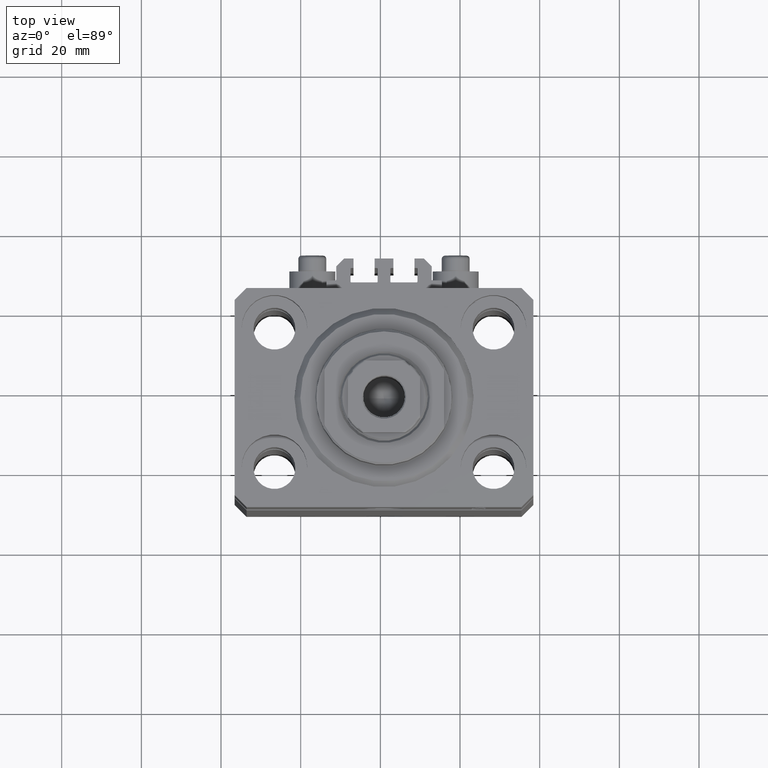
[diagram: clean part render]
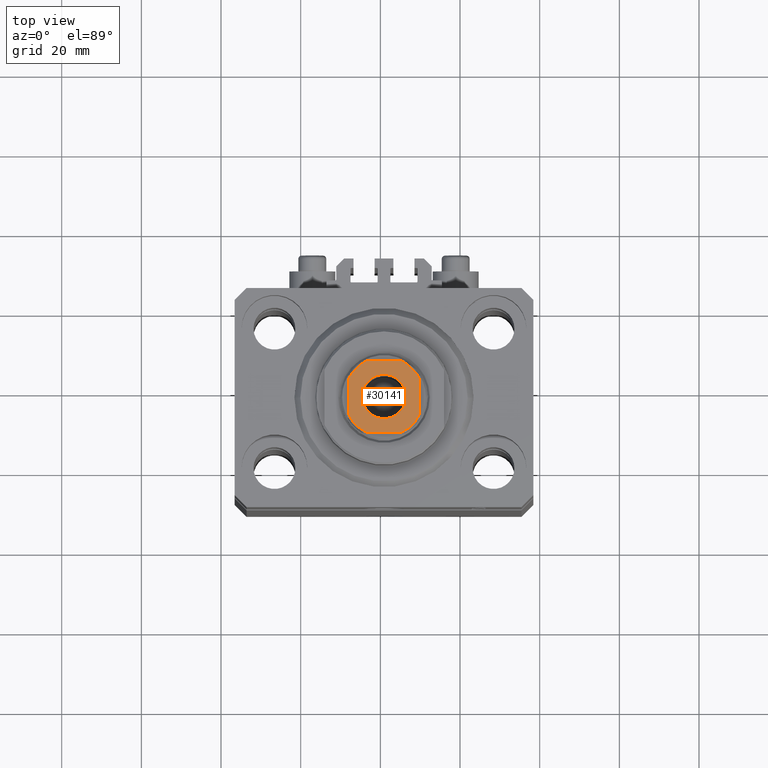
[diagram: same view with one face highlighted and labeled with its STEP entity id]
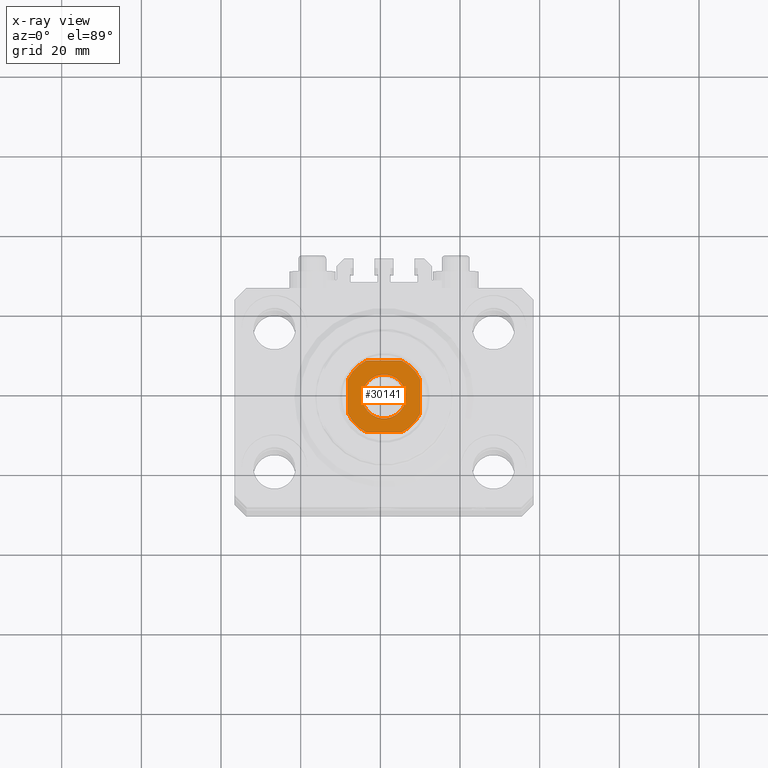
[diagram: x-ray of the same camera — body ghosted, the highlighted face saturated]
A machine part, top view. The second image highlights one B-rep face of the part: STEP entity #30141.
The next image is the same camera in x-ray: the body ghosted, the highlighted face saturated — about 0% of this face is hidden behind the body in this view.
In plain terms, the highlighted planar face has unit normal (0, 0, 1).
Its self-contained STEP definition (entity closure, byte-faithful):
#578 = AXIS2_PLACEMENT_3D ( 'NONE', #21206, #28077, #24529 ) ;
#943 = PLANE ( 'NONE',  #27938 ) ;
#1278 = CARTESIAN_POINT ( 'NONE',  ( -4.358898943540678417, 8.999999999999998224, 145.0000000000000284 ) ) ;
#1408 = CARTESIAN_POINT ( 'NONE',  ( 9.000000000000000000, 8.999999999999998224, 145.0000000000000284 ) ) ;
#2136 = ORIENTED_EDGE ( 'NONE', *, *, #17932, .T. ) ;
#2416 = DIRECTION ( 'NONE',  ( -0.000000000000000000, 0.000000000000000000, 1.000000000000000000 ) ) ;
#2790 = VERTEX_POINT ( 'NONE', #25884 ) ;
#4512 = EDGE_CURVE ( 'NONE', #2790, #6571, #46490, .T. ) ;
#4651 = DIRECTION ( 'NONE',  ( 1.000000000000000000, 0.000000000000000000, 0.000000000000000000 ) ) ;
#5485 = AXIS2_PLACEMENT_3D ( 'NONE', #31839, #38481, #12920 ) ;
#5699 = EDGE_LOOP ( 'NONE', ( #22769, #37264, #26899, #2136, #13645, #18002, #36061, #12135 ) ) ;
#6571 = VERTEX_POINT ( 'NONE', #40898 ) ;
#7533 = CIRCLE ( 'NONE', #29370, 5.549999999999998934 ) ;
#7802 = FACE_BOUND ( 'NONE', #13277, .T. ) ;
#8342 = EDGE_CURVE ( 'NONE', #29936, #18470, #46688, .T. ) ;
#8430 = DIRECTION ( 'NONE',  ( -0.000000000000000000, 0.000000000000000000, 1.000000000000000000 ) ) ;
#10130 = EDGE_CURVE ( 'NONE', #32015, #26345, #45941, .T. ) ;
#10482 = LINE ( 'NONE', #39373, #29777 ) ;
#10552 = CARTESIAN_POINT ( 'NONE',  ( -4.358898943540671311, -9.000000000000001776, 145.0000000000000284 ) ) ;
#10695 = DIRECTION ( 'NONE',  ( 9.637352644315595243E-17, -1.000000000000000000, 0.000000000000000000 ) ) ;
#12065 = DIRECTION ( 'NONE',  ( -0.000000000000000000, 0.000000000000000000, 1.000000000000000000 ) ) ;
#12135 = ORIENTED_EDGE ( 'NONE', *, *, #27523, .T. ) ;
#12379 = DIRECTION ( 'NONE',  ( 1.000000000000000000, 0.000000000000000000, 0.000000000000000000 ) ) ;
#12605 = CARTESIAN_POINT ( 'NONE',  ( 0.000000000000000000, 0.000000000000000000, 145.0000000000000284 ) ) ;
#12920 = DIRECTION ( 'NONE',  ( 1.000000000000000000, 0.000000000000000000, 0.000000000000000000 ) ) ;
#12970 = VERTEX_POINT ( 'NONE', #1278 ) ;
#13234 = AXIS2_PLACEMENT_3D ( 'NONE', #38019, #20498, #34694 ) ;
#13277 = EDGE_LOOP ( 'NONE', ( #23619, #45177 ) ) ;
#13323 = CARTESIAN_POINT ( 'NONE',  ( -9.000000000000000000, 8.999999999999998224, 145.0000000000000284 ) ) ;
#13361 = CARTESIAN_POINT ( 'NONE',  ( -9.000000000000000000, -4.358898943540675752, 145.0000000000000284 ) ) ;
#13645 = ORIENTED_EDGE ( 'NONE', *, *, #30178, .T. ) ;
#13893 = DIRECTION ( 'NONE',  ( 0.000000000000000000, -0.000000000000000000, -1.000000000000000000 ) ) ;
#14502 = DIRECTION ( 'NONE',  ( -1.000000000000000000, -0.000000000000000000, -0.000000000000000000 ) ) ;
#17641 = VERTEX_POINT ( 'NONE', #10552 ) ;
#17932 = EDGE_CURVE ( 'NONE', #40245, #28287, #35499, .T. ) ;
#18002 = ORIENTED_EDGE ( 'NONE', *, *, #4512, .T. ) ;
#18470 = VERTEX_POINT ( 'NONE', #13361 ) ;
#19637 = CARTESIAN_POINT ( 'NONE',  ( 0.000000000000000000, 0.000000000000000000, 145.0000000000000284 ) ) ;
#20498 = DIRECTION ( 'NONE',  ( -0.000000000000000000, 0.000000000000000000, 1.000000000000000000 ) ) ;
#21206 = CARTESIAN_POINT ( 'NONE',  ( 0.000000000000000000, 0.000000000000000000, 145.0000000000000284 ) ) ;
#22274 = CARTESIAN_POINT ( 'NONE',  ( 4.358898943540671311, -9.000000000000001776, 145.0000000000000284 ) ) ;
#22769 = ORIENTED_EDGE ( 'NONE', *, *, #8342, .T. ) ;
#22809 = CARTESIAN_POINT ( 'NONE',  ( -8.999999999999998224, -9.000000000000001776, 145.0000000000000284 ) ) ;
#23619 = ORIENTED_EDGE ( 'NONE', *, *, #10130, .T. ) ;
#24198 = EDGE_CURVE ( 'NONE', #18470, #17641, #34210, .T. ) ;
#24529 = DIRECTION ( 'NONE',  ( 1.000000000000000000, 0.000000000000000000, 0.000000000000000000 ) ) ;
#25806 = DIRECTION ( 'NONE',  ( 1.000000000000000000, 0.000000000000000000, 0.000000000000000000 ) ) ;
#25884 = CARTESIAN_POINT ( 'NONE',  ( 9.000000000000000000, 4.358898943540675752, 145.0000000000000284 ) ) ;
#26276 = LINE ( 'NONE', #1408, #44581 ) ;
#26345 = VERTEX_POINT ( 'NONE', #45010 ) ;
#26899 = ORIENTED_EDGE ( 'NONE', *, *, #46453, .T. ) ;
#27523 = EDGE_CURVE ( 'NONE', #12970, #29936, #42959, .T. ) ;
#27938 = AXIS2_PLACEMENT_3D ( 'NONE', #19637, #12065, #25806 ) ;
#28077 = DIRECTION ( 'NONE',  ( 0.000000000000000000, -0.000000000000000000, -1.000000000000000000 ) ) ;
#28232 = VECTOR ( 'NONE', #12379, 1000.000000000000000 ) ;
#28287 = VERTEX_POINT ( 'NONE', #43471 ) ;
#28340 = CARTESIAN_POINT ( 'NONE',  ( 0.000000000000000000, 0.000000000000000000, 145.0000000000000284 ) ) ;
#29370 = AXIS2_PLACEMENT_3D ( 'NONE', #28340, #13893, #46553 ) ;
#29777 = VECTOR ( 'NONE', #14502, 1000.000000000000000 ) ;
#29936 = VERTEX_POINT ( 'NONE', #38162 ) ;
#30141 = ADVANCED_FACE ( 'NONE', ( #7802, #33598 ), #943, .T. ) ;
#30178 = EDGE_CURVE ( 'NONE', #28287, #2790, #26276, .T. ) ;
#31545 = EDGE_CURVE ( 'NONE', #26345, #32015, #7533, .T. ) ;
#31839 = CARTESIAN_POINT ( 'NONE',  ( 0.000000000000000000, 0.000000000000000000, 145.0000000000000284 ) ) ;
#32015 = VERTEX_POINT ( 'NONE', #33208 ) ;
#33208 = CARTESIAN_POINT ( 'NONE',  ( 5.549999999999998934, 0.000000000000000000, 145.0000000000000284 ) ) ;
#33598 = FACE_OUTER_BOUND ( 'NONE', #5699, .T. ) ;
#34210 = CIRCLE ( 'NONE', #5485, 10.00000000000000000 ) ;
#34694 = DIRECTION ( 'NONE',  ( 1.000000000000000000, 0.000000000000000000, 0.000000000000000000 ) ) ;
#35499 = CIRCLE ( 'NONE', #46070, 10.00000000000000000 ) ;
#36061 = ORIENTED_EDGE ( 'NONE', *, *, #44259, .T. ) ;
#37264 = ORIENTED_EDGE ( 'NONE', *, *, #24198, .T. ) ;
#37554 = CARTESIAN_POINT ( 'NONE',  ( 0.000000000000000000, 0.000000000000000000, 145.0000000000000284 ) ) ;
#37565 = VECTOR ( 'NONE', #10695, 1000.000000000000000 ) ;
#38019 = CARTESIAN_POINT ( 'NONE',  ( 0.000000000000000000, 0.000000000000000000, 145.0000000000000284 ) ) ;
#38162 = CARTESIAN_POINT ( 'NONE',  ( -9.000000000000000000, 4.358898943540674864, 145.0000000000000284 ) ) ;
#38481 = DIRECTION ( 'NONE',  ( -0.000000000000000000, 0.000000000000000000, 1.000000000000000000 ) ) ;
#39373 = CARTESIAN_POINT ( 'NONE',  ( -9.000000000000000000, 8.999999999999998224, 145.0000000000000284 ) ) ;
#40245 = VERTEX_POINT ( 'NONE', #22274 ) ;
#40708 = DIRECTION ( 'NONE',  ( -9.637352644315595243E-17, 1.000000000000000000, -0.000000000000000000 ) ) ;
#40785 = LINE ( 'NONE', #22809, #28232 ) ;
#40898 = CARTESIAN_POINT ( 'NONE',  ( 4.358898943540677529, 8.999999999999998224, 145.0000000000000284 ) ) ;
#41481 = DIRECTION ( 'NONE',  ( 1.000000000000000000, 0.000000000000000000, 0.000000000000000000 ) ) ;
#42959 = CIRCLE ( 'NONE', #45975, 10.00000000000000000 ) ;
#43471 = CARTESIAN_POINT ( 'NONE',  ( 9.000000000000001776, -4.358898943540675752, 145.0000000000000284 ) ) ;
#44259 = EDGE_CURVE ( 'NONE', #6571, #12970, #10482, .T. ) ;
#44581 = VECTOR ( 'NONE', #40708, 1000.000000000000000 ) ;
#45010 = CARTESIAN_POINT ( 'NONE',  ( -5.549999999999998934, 6.796789735267809794E-16, 145.0000000000000284 ) ) ;
#45177 = ORIENTED_EDGE ( 'NONE', *, *, #31545, .T. ) ;
#45941 = CIRCLE ( 'NONE', #578, 5.549999999999998934 ) ;
#45975 = AXIS2_PLACEMENT_3D ( 'NONE', #37554, #8430, #4651 ) ;
#46070 = AXIS2_PLACEMENT_3D ( 'NONE', #12605, #2416, #41481 ) ;
#46453 = EDGE_CURVE ( 'NONE', #17641, #40245, #40785, .T. ) ;
#46490 = CIRCLE ( 'NONE', #13234, 10.00000000000000000 ) ;
#46553 = DIRECTION ( 'NONE',  ( 1.000000000000000000, 0.000000000000000000, 0.000000000000000000 ) ) ;
#46688 = LINE ( 'NONE', #13323, #37565 ) ;